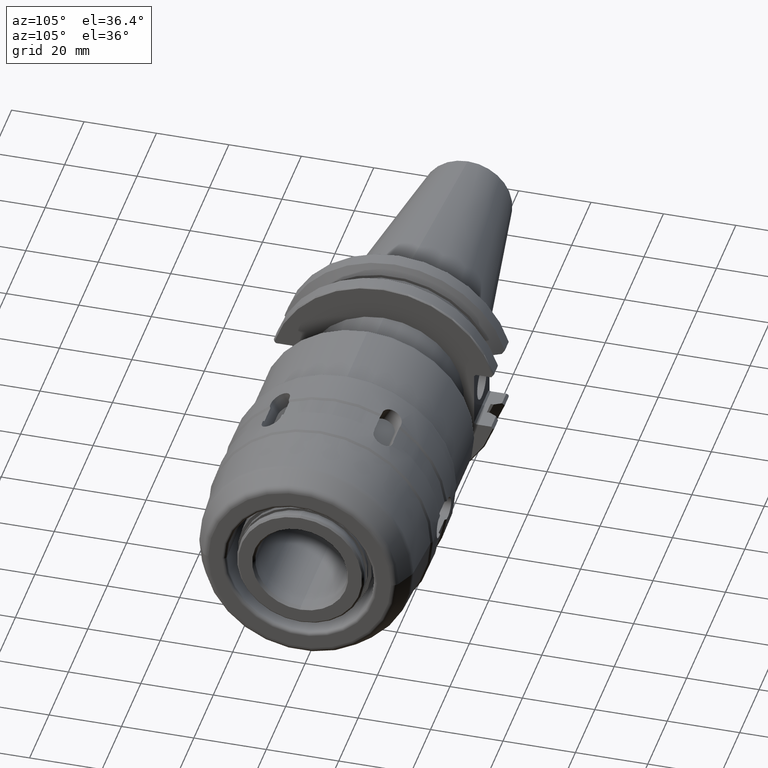
[diagram: clean part render]
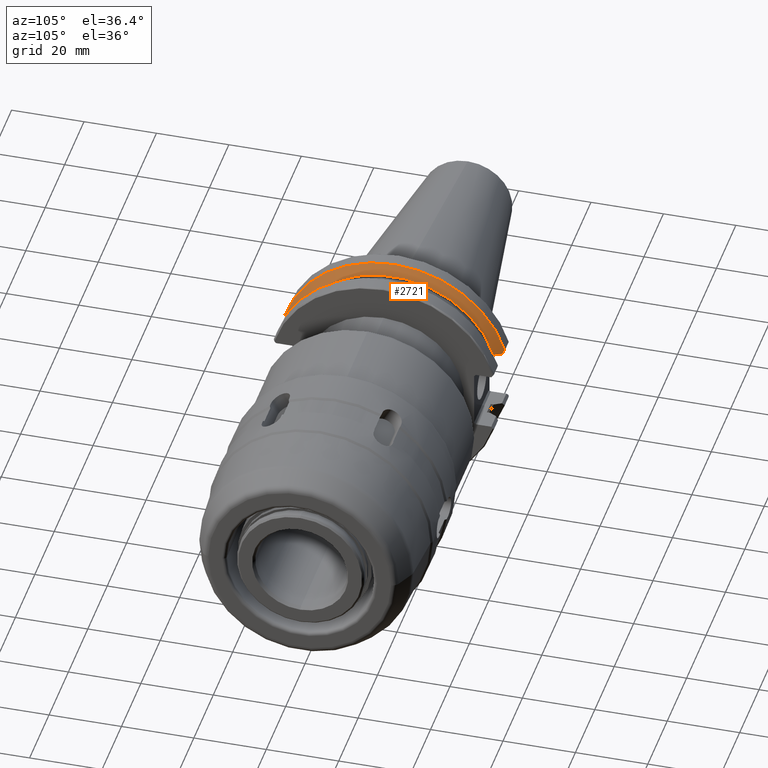
[diagram: same view with one face highlighted and labeled with its STEP entity id]
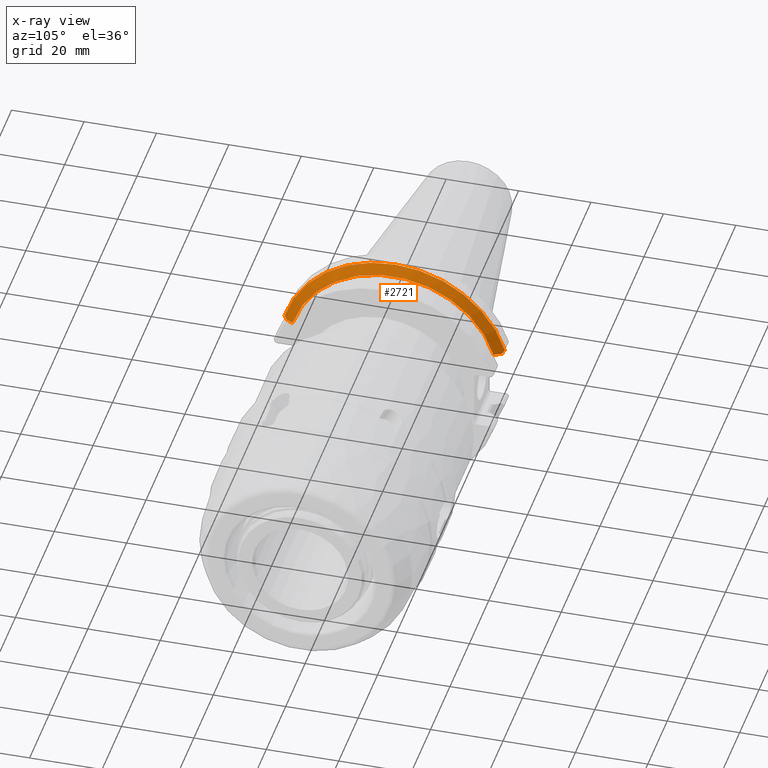
[diagram: x-ray of the same camera — body ghosted, the highlighted face saturated]
A machine part, auxiliary view. The second image highlights one B-rep face of the part: STEP entity #2721.
The next image is the same camera in x-ray: the body ghosted, the highlighted face saturated — about 0% of this face is hidden behind the body in this view.
In plain terms, the highlighted conical surface has half-angle 60 deg.
Its self-contained STEP definition (entity closure, byte-faithful):
#714=CARTESIAN_POINT('',(8.123639020472E0,2.975013277281E1,8.19E0));
#715=CARTESIAN_POINT('',(8.039100933267E0,2.986102141980E1,8.338869673775E0));
#716=CARTESIAN_POINT('',(7.868614064527E0,3.008369062664E1,8.637806427737E0));
#717=CARTESIAN_POINT('',(7.695328138794E0,3.030814968477E1,8.939146083944E0));
#718=CARTESIAN_POINT('',(7.607990865E0,3.042082819764E1,9.090418679549E0));
#720=CARTESIAN_POINT('',(8.123639020472E0,2.975013277281E1,8.19E0));
#721=CARTESIAN_POINT('',(8.247937579506E0,2.952683227014E1,8.19E0));
#722=CARTESIAN_POINT('',(8.494818240530E0,2.908296065829E1,8.19E0));
#723=CARTESIAN_POINT('',(8.859971936954E0,2.842534536140E1,8.19E0));
#724=CARTESIAN_POINT('',(9.099966323800E0,2.799237066391E1,8.19E0));
#725=CARTESIAN_POINT('',(9.2191E0,2.777724275660E1,8.19E0));
#727=CARTESIAN_POINT('',(9.2191E0,0.E0,0.E0));
#728=DIRECTION('',(1.E0,0.E0,0.E0));
#729=DIRECTION('',(0.E0,9.591762530767E-1,2.828089735736E-1));
#730=AXIS2_PLACEMENT_3D('',#727,#728,#729);
#732=CARTESIAN_POINT('',(9.2191E0,-2.777724275660E1,8.19E0));
#733=CARTESIAN_POINT('',(9.100004436185E0,-2.799230184175E1,8.19E0));
#734=CARTESIAN_POINT('',(8.860060979749E0,-2.842518482368E1,8.19E0));
#735=CARTESIAN_POINT('',(8.494908006267E0,-2.908279917371E1,8.19E0));
#736=CARTESIAN_POINT('',(8.247976093806E0,-2.952676307978E1,8.19E0));
#737=CARTESIAN_POINT('',(8.123639020472E0,-2.975013277281E1,8.19E0));
#739=CARTESIAN_POINT('',(7.607990865E0,-3.042082819764E1,9.090418679549E0));
#740=CARTESIAN_POINT('',(7.695827202243E0,-3.030750581618E1,8.938281680694E0));
#741=CARTESIAN_POINT('',(7.869605602884E0,-3.008240105924E1,8.636075164136E0));
#742=CARTESIAN_POINT('',(8.039593216595E0,-2.986037569154E1,8.338002773885E0));
#743=CARTESIAN_POINT('',(8.123639020472E0,-2.975013277281E1,8.19E0));
#745=CARTESIAN_POINT('',(7.607990865E0,0.E0,0.E0));
#746=DIRECTION('',(-1.E0,0.E0,0.E0));
#747=DIRECTION('',(0.E0,-9.581363211856E-1,2.863123993559E-1));
#748=AXIS2_PLACEMENT_3D('',#745,#746,#747);
#1398=CARTESIAN_POINT('',(9.2191E0,2.777724275660E1,8.19E0));
#1400=VERTEX_POINT('',#1398);
#1414=CARTESIAN_POINT('',(9.2191E0,-2.777724275660E1,8.19E0));
#1416=VERTEX_POINT('',#1414);
#1430=VERTEX_POINT('',#714);
#1431=VERTEX_POINT('',#718);
#1440=VERTEX_POINT('',#739);
#1441=VERTEX_POINT('',#743);
#2708=CARTESIAN_POINT('',(8.413545432500E0,0.E0,0.E0));
#2709=DIRECTION('',(-1.E0,0.E0,0.E0));
#2710=DIRECTION('',(0.E0,0.E0,-1.E0));
#2711=AXIS2_PLACEMENT_3D('',#2708,#2709,#2710);
#2712=CONICAL_SURFACE('',#2711,3.035473856082E1,6.E1);
#2713=ORIENTED_EDGE('',*,*,#2598,.F.);
#2714=ORIENTED_EDGE('',*,*,#2621,.T.);
#2715=ORIENTED_EDGE('',*,*,#2688,.T.);
#2716=ORIENTED_EDGE('',*,*,#2435,.T.);
#2717=ORIENTED_EDGE('',*,*,#2530,.F.);
#2718=ORIENTED_EDGE('',*,*,#2544,.T.);
#2719=EDGE_LOOP('',(#2713,#2714,#2715,#2716,#2717,#2718));
#2720=FACE_OUTER_BOUND('',#2719,.F.);
#2721=ADVANCED_FACE('',(#2720),#2712,.T.);
#719=B_SPLINE_CURVE_WITH_KNOTS('',3,(#714,#715,#716,#717,#718),.UNSPECIFIED.,
.F.,.F.,(4,1,4),(0.E0,5.E-1,1.E0),.UNSPECIFIED.);
#726=B_SPLINE_CURVE_WITH_KNOTS('',3,(#720,#721,#722,#723,#724,#725),
.UNSPECIFIED.,.F.,.F.,(4,1,1,4),(0.E0,3.333333333333E-1,6.666666666667E-1,1.E0),
.UNSPECIFIED.);
#731=CIRCLE('',#730,2.895947712164E1);
#738=B_SPLINE_CURVE_WITH_KNOTS('',3,(#732,#733,#734,#735,#736,#737),
.UNSPECIFIED.,.F.,.F.,(4,1,1,4),(0.E0,3.333333333333E-1,6.666666666667E-1,1.E0),
.UNSPECIFIED.);
#744=B_SPLINE_CURVE_WITH_KNOTS('',3,(#739,#740,#741,#742,#743),.UNSPECIFIED.,
.F.,.F.,(4,1,4),(0.E0,5.E-1,1.E0),.UNSPECIFIED.);
#749=CIRCLE('',#748,3.175E1);
#2435=EDGE_CURVE('',#1416,#1441,#738,.T.);
#2530=EDGE_CURVE('',#1440,#1441,#744,.T.);
#2544=EDGE_CURVE('',#1440,#1431,#749,.T.);
#2598=EDGE_CURVE('',#1430,#1431,#719,.T.);
#2621=EDGE_CURVE('',#1430,#1400,#726,.T.);
#2688=EDGE_CURVE('',#1400,#1416,#731,.T.);